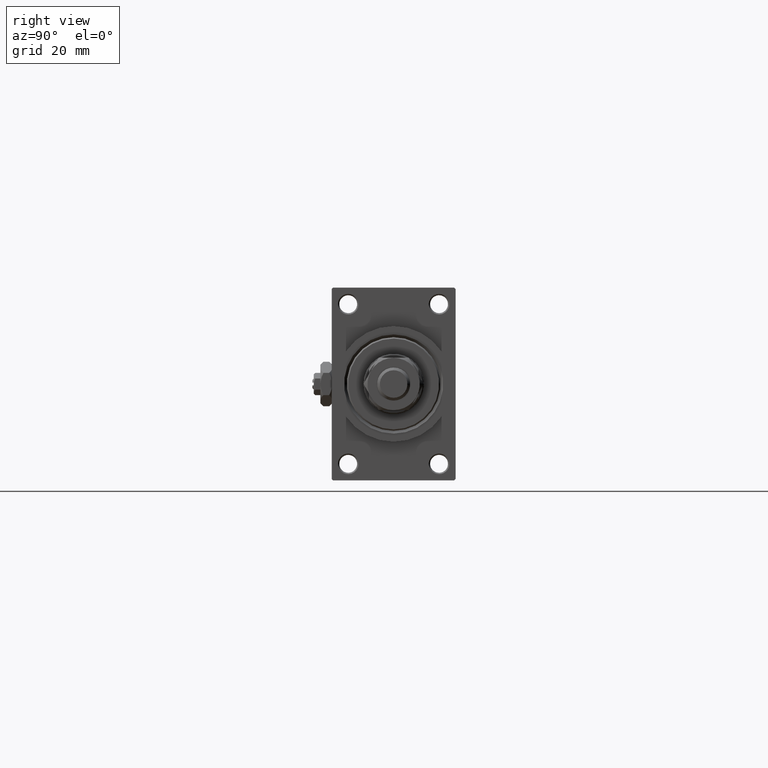
[diagram: clean part render]
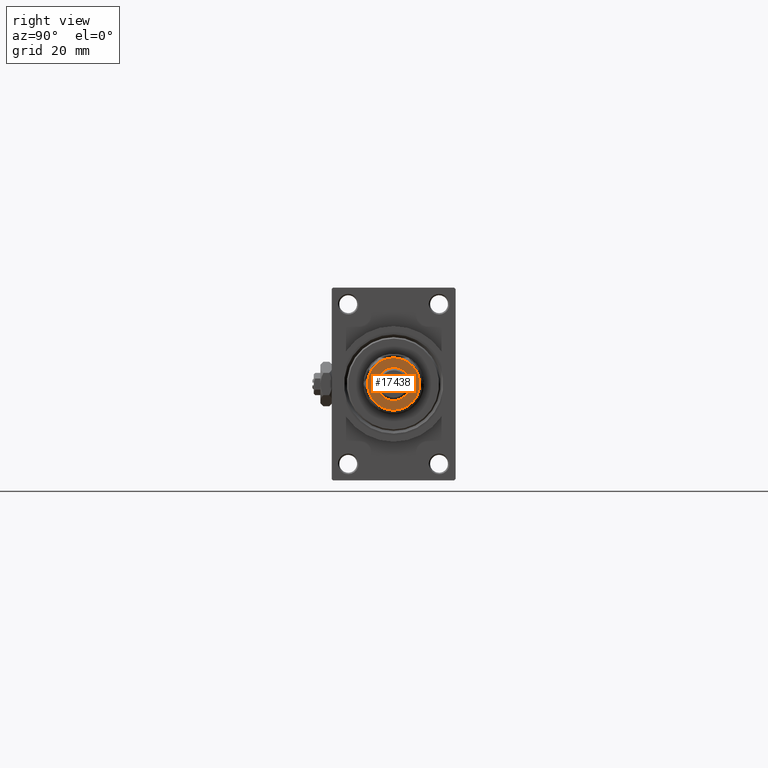
[diagram: same view with one face highlighted and labeled with its STEP entity id]
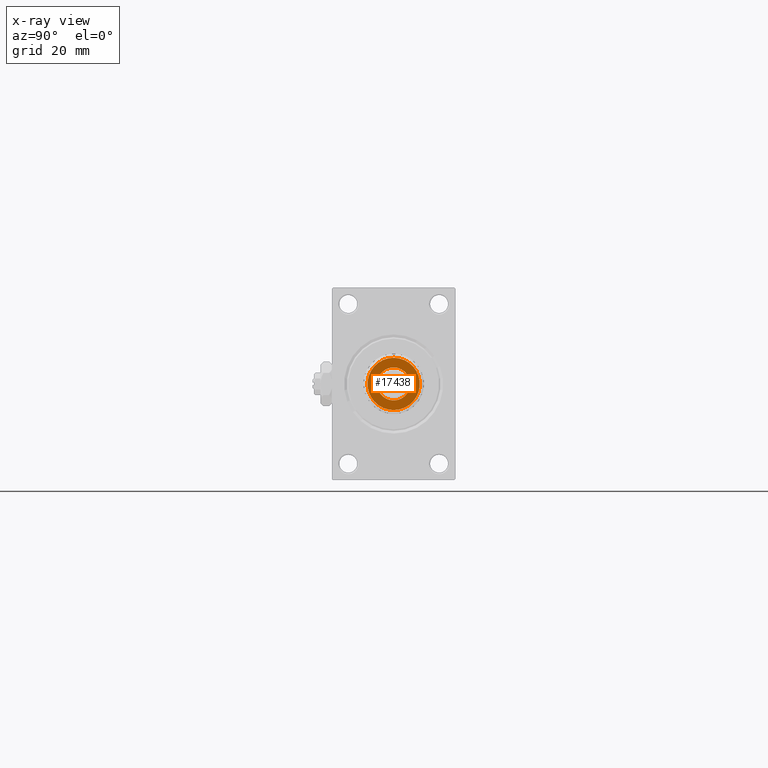
[diagram: x-ray of the same camera — body ghosted, the highlighted face saturated]
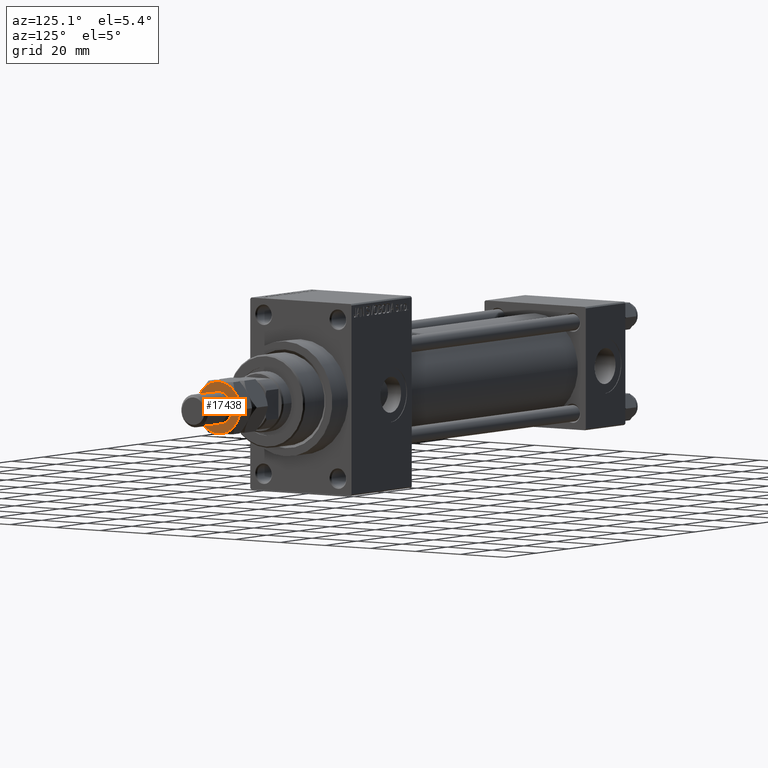
[diagram: same view with one face highlighted and labeled with its STEP entity id]
A machine part, right view. The second image highlights one B-rep face of the part: STEP entity #17438.
The next image is the same camera in x-ray: the body ghosted, the highlighted face saturated — about 0% of this face is hidden behind the body in this view.
A second angle (auxiliary view) of the same face is appended — the face is thin or edge-on in the first view.
In plain terms, the highlighted planar face has unit normal (1, 0, 0).
Its self-contained STEP definition (entity closure, byte-faithful):
#4 = DIRECTION ( 'NONE',  ( -0.000000000000000000, 0.000000000000000000, -1.000000000000000000 ) ) ;
#613 = CARTESIAN_POINT ( 'NONE',  ( 0.000000000000000000, 0.000000000000000000, 17.00000000000000000 ) ) ;
#3168 = CARTESIAN_POINT ( 'NONE',  ( 0.000000000000000000, 0.000000000000000000, 17.00000000000000000 ) ) ;
#3329 = CARTESIAN_POINT ( 'NONE',  ( 6.000000000000000000, 0.000000000000000000, 17.00000000000000000 ) ) ;
#3587 = DIRECTION ( 'NONE',  ( 0.000000000000000000, -0.000000000000000000, 1.000000000000000000 ) ) ;
#4052 = CARTESIAN_POINT ( 'NONE',  ( -4.749999999999999112, -8.227241335952165002, 17.00000000000000000 ) ) ;
#4151 = ORIENTED_EDGE ( 'NONE', *, *, #25606, .T. ) ;
#4292 = VERTEX_POINT ( 'NONE', #23485 ) ;
#4568 = AXIS2_PLACEMENT_3D ( 'NONE', #613, #16256, #20616 ) ;
#5488 = EDGE_CURVE ( 'NONE', #40476, #4292, #7941, .T. ) ;
#5529 = EDGE_CURVE ( 'NONE', #32235, #10828, #39878, .T. ) ;
#7174 = CARTESIAN_POINT ( 'NONE',  ( 0.000000000000000000, 0.000000000000000000, 17.00000000000000000 ) ) ;
#7941 = CIRCLE ( 'NONE', #16937, 6.000000000000000000 ) ;
#8081 = AXIS2_PLACEMENT_3D ( 'NONE', #36929, #24916, #14116 ) ;
#8513 = CARTESIAN_POINT ( 'NONE',  ( 0.000000000000000000, 0.000000000000000000, 17.00000000000000000 ) ) ;
#8523 = VERTEX_POINT ( 'NONE', #39572 ) ;
#8813 = DIRECTION ( 'NONE',  ( 0.000000000000000000, -0.000000000000000000, 1.000000000000000000 ) ) ;
#10030 = CIRCLE ( 'NONE', #14937, 9.499999999999994671 ) ;
#10828 = VERTEX_POINT ( 'NONE', #37937 ) ;
#12082 = ORIENTED_EDGE ( 'NONE', *, *, #24409, .T. ) ;
#12204 = ORIENTED_EDGE ( 'NONE', *, *, #12998, .T. ) ;
#12551 = CARTESIAN_POINT ( 'NONE',  ( 4.750000000000000000, -8.227241335952161450, 17.00000000000000000 ) ) ;
#12612 = DIRECTION ( 'NONE',  ( 0.000000000000000000, -0.000000000000000000, 1.000000000000000000 ) ) ;
#12998 = EDGE_CURVE ( 'NONE', #43087, #49638, #30162, .T. ) ;
#14116 = DIRECTION ( 'NONE',  ( 1.000000000000000000, 0.000000000000000000, 0.000000000000000000 ) ) ;
#14789 = CARTESIAN_POINT ( 'NONE',  ( 0.000000000000000000, 0.000000000000000000, 17.00000000000000000 ) ) ;
#14937 = AXIS2_PLACEMENT_3D ( 'NONE', #42901, #8813, #23947 ) ;
#14967 = DIRECTION ( 'NONE',  ( 1.000000000000000000, 0.000000000000000000, 0.000000000000000000 ) ) ;
#15647 = DIRECTION ( 'NONE',  ( 1.000000000000000000, 0.000000000000000000, 0.000000000000000000 ) ) ;
#16256 = DIRECTION ( 'NONE',  ( 0.000000000000000000, -0.000000000000000000, 1.000000000000000000 ) ) ;
#16937 = AXIS2_PLACEMENT_3D ( 'NONE', #42127, #19324, #38289 ) ;
#17438 = ADVANCED_FACE ( 'NONE', ( #47470, #27996 ), #43610, .T. ) ;
#17866 = ORIENTED_EDGE ( 'NONE', *, *, #5529, .T. ) ;
#18551 = DIRECTION ( 'NONE',  ( 0.000000000000000000, 0.000000000000000000, 1.000000000000000000 ) ) ;
#19169 = ORIENTED_EDGE ( 'NONE', *, *, #49840, .T. ) ;
#19324 = DIRECTION ( 'NONE',  ( -0.000000000000000000, 0.000000000000000000, -1.000000000000000000 ) ) ;
#20133 = CIRCLE ( 'NONE', #4568, 9.499999999999994671 ) ;
#20616 = DIRECTION ( 'NONE',  ( 1.000000000000000000, 0.000000000000000000, 0.000000000000000000 ) ) ;
#21298 = ORIENTED_EDGE ( 'NONE', *, *, #33964, .T. ) ;
#21763 = AXIS2_PLACEMENT_3D ( 'NONE', #7174, #3587, #34594 ) ;
#22173 = AXIS2_PLACEMENT_3D ( 'NONE', #8513, #12612, #32344 ) ;
#23485 = CARTESIAN_POINT ( 'NONE',  ( -6.000000000000000000, 7.347880794884119736E-16, 17.00000000000000000 ) ) ;
#23947 = DIRECTION ( 'NONE',  ( 1.000000000000000000, 0.000000000000000000, 0.000000000000000000 ) ) ;
#24409 = EDGE_CURVE ( 'NONE', #49638, #32235, #10030, .T. ) ;
#24916 = DIRECTION ( 'NONE',  ( 0.000000000000000000, -0.000000000000000000, 1.000000000000000000 ) ) ;
#25133 = AXIS2_PLACEMENT_3D ( 'NONE', #3168, #18551, #14967 ) ;
#25606 = EDGE_CURVE ( 'NONE', #4292, #40476, #43623, .T. ) ;
#27996 = FACE_OUTER_BOUND ( 'NONE', #42969, .T. ) ;
#30162 = CIRCLE ( 'NONE', #8081, 9.499999999999994671 ) ;
#31994 = CIRCLE ( 'NONE', #43433, 9.499999999999994671 ) ;
#32235 = VERTEX_POINT ( 'NONE', #42036 ) ;
#32344 = DIRECTION ( 'NONE',  ( 1.000000000000000000, 0.000000000000000000, -0.000000000000000000 ) ) ;
#33964 = EDGE_CURVE ( 'NONE', #10828, #8523, #31994, .T. ) ;
#34256 = DIRECTION ( 'NONE',  ( 1.000000000000000000, 0.000000000000000000, 0.000000000000000000 ) ) ;
#34594 = DIRECTION ( 'NONE',  ( 1.000000000000000000, 0.000000000000000000, 0.000000000000000000 ) ) ;
#36929 = CARTESIAN_POINT ( 'NONE',  ( 0.000000000000000000, 0.000000000000000000, 17.00000000000000000 ) ) ;
#37871 = VERTEX_POINT ( 'NONE', #41806 ) ;
#37937 = CARTESIAN_POINT ( 'NONE',  ( 4.749999999999998224, 8.227241335952161450, 17.00000000000000000 ) ) ;
#38289 = DIRECTION ( 'NONE',  ( 1.000000000000000000, 0.000000000000000000, 0.000000000000000000 ) ) ;
#38425 = ORIENTED_EDGE ( 'NONE', *, *, #48907, .T. ) ;
#39482 = CARTESIAN_POINT ( 'NONE',  ( 0.000000000000000000, 0.000000000000000000, 17.00000000000000000 ) ) ;
#39572 = CARTESIAN_POINT ( 'NONE',  ( -4.749999999999998224, 8.227241335952161450, 17.00000000000000000 ) ) ;
#39878 = CIRCLE ( 'NONE', #25133, 9.499999999999994671 ) ;
#40476 = VERTEX_POINT ( 'NONE', #3329 ) ;
#41806 = CARTESIAN_POINT ( 'NONE',  ( -9.499999999999994671, 0.000000000000000000, 17.00000000000000000 ) ) ;
#41968 = AXIS2_PLACEMENT_3D ( 'NONE', #39482, #4, #15647 ) ;
#42036 = CARTESIAN_POINT ( 'NONE',  ( 9.499999999999994671, 1.502314598737158637E-15, 17.00000000000000000 ) ) ;
#42127 = CARTESIAN_POINT ( 'NONE',  ( 0.000000000000000000, 0.000000000000000000, 17.00000000000000000 ) ) ;
#42901 = CARTESIAN_POINT ( 'NONE',  ( 0.000000000000000000, 0.000000000000000000, 17.00000000000000000 ) ) ;
#42969 = EDGE_LOOP ( 'NONE', ( #12082, #17866, #21298, #38425, #19169, #12204 ) ) ;
#43087 = VERTEX_POINT ( 'NONE', #4052 ) ;
#43433 = AXIS2_PLACEMENT_3D ( 'NONE', #14789, #46047, #34256 ) ;
#43610 = PLANE ( 'NONE',  #22173 ) ;
#43623 = CIRCLE ( 'NONE', #41968, 6.000000000000000000 ) ;
#43873 = CIRCLE ( 'NONE', #21763, 9.499999999999994671 ) ;
#46047 = DIRECTION ( 'NONE',  ( 0.000000000000000000, -0.000000000000000000, 1.000000000000000000 ) ) ;
#47470 = FACE_BOUND ( 'NONE', #49690, .T. ) ;
#48907 = EDGE_CURVE ( 'NONE', #8523, #37871, #20133, .T. ) ;
#49155 = ORIENTED_EDGE ( 'NONE', *, *, #5488, .T. ) ;
#49638 = VERTEX_POINT ( 'NONE', #12551 ) ;
#49690 = EDGE_LOOP ( 'NONE', ( #49155, #4151 ) ) ;
#49840 = EDGE_CURVE ( 'NONE', #37871, #43087, #43873, .T. ) ;